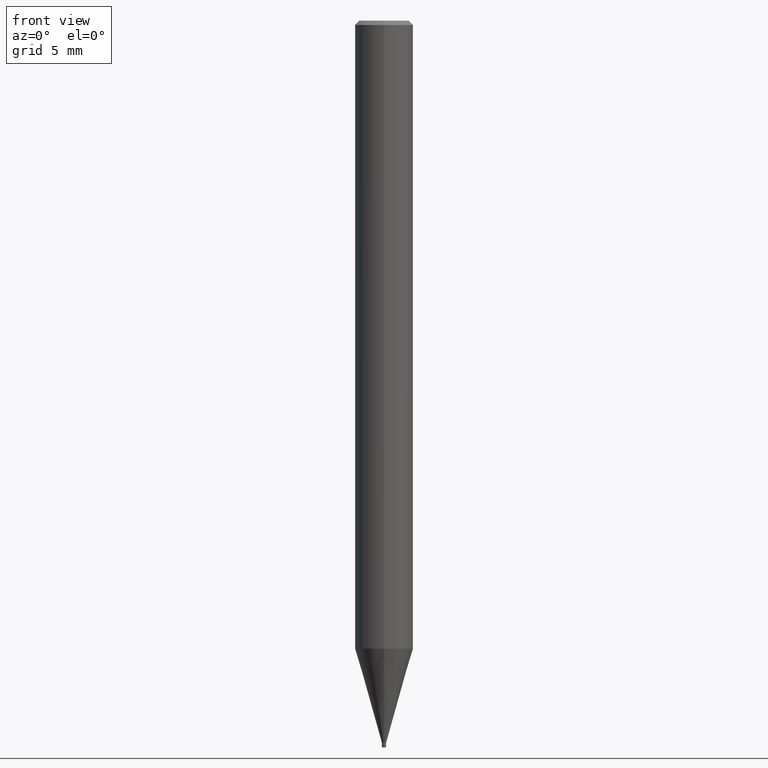
[diagram: clean part render]
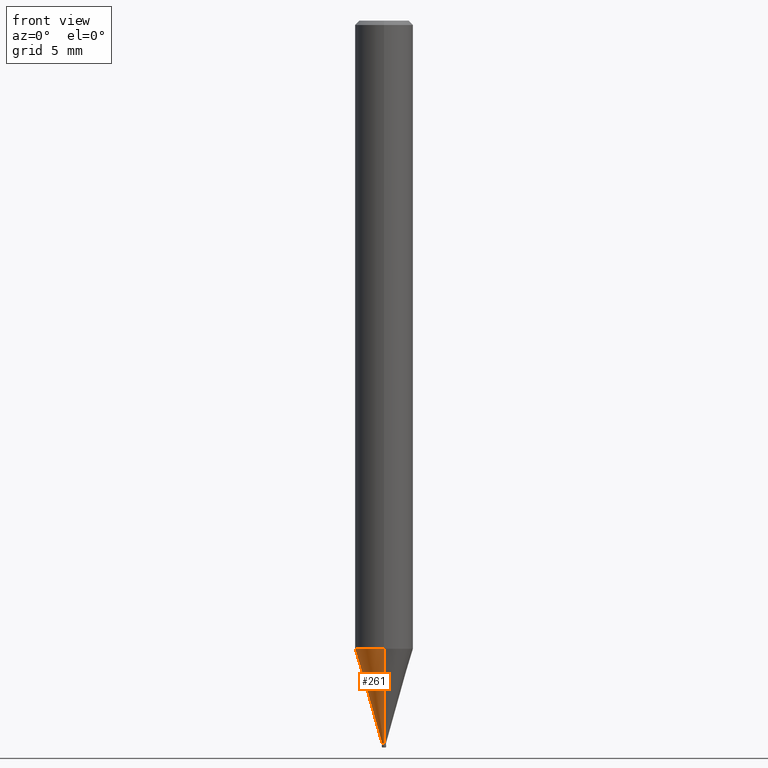
[diagram: same view with one face highlighted and labeled with its STEP entity id]
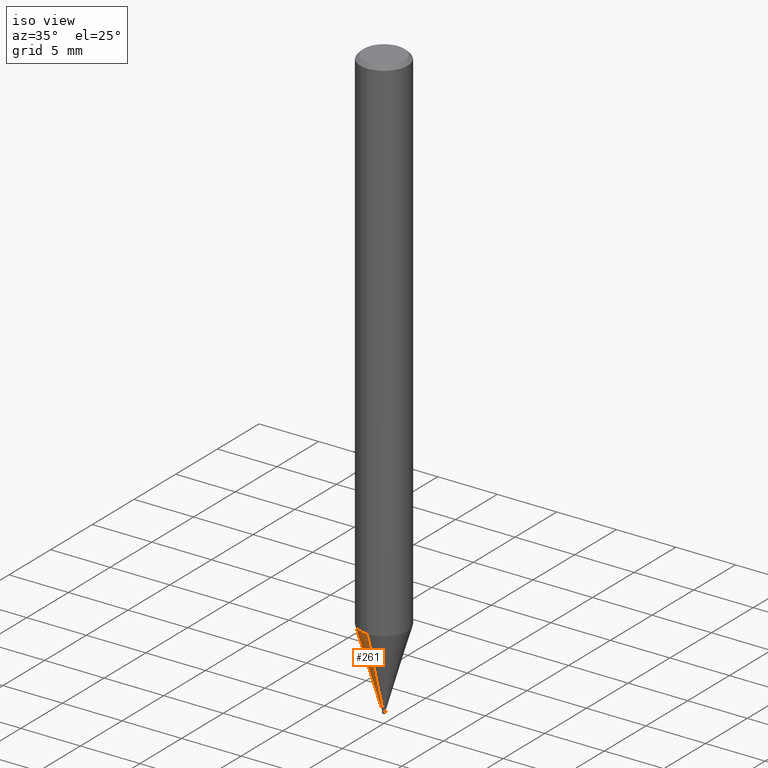
[diagram: same view with one face highlighted and labeled with its STEP entity id]
A machine part, front view. The second image highlights one B-rep face of the part: STEP entity #261.
A second angle (iso view) of the same face is appended — the face is thin or edge-on in the first view.
In plain terms, the highlighted conical surface has half-angle 15.999 deg.
Its self-contained STEP definition (entity closure, byte-faithful):
#153=VERTEX_POINT('',#391);
#221=VERTEX_POINT('',#466);
#239=EDGE_CURVE('',#153,#341,#487,.T.);
#245=VERTEX_POINT('',#493);
#247=EDGE_CURVE('',#245,#341,#495,.T.);
#261=ADVANCED_FACE('',(#511),#512,.T.);
#303=EDGE_CURVE('',#153,#221,#560,.T.);
#319=EDGE_CURVE('',#221,#245,#578,.T.);
#341=VERTEX_POINT('',#604);
#391=CARTESIAN_POINT('',(1.71383659217442E-017,-0.13995,-49.69));
#466=CARTESIAN_POINT('',(2.44915147732706E-016,-1.99995,-43.203));
#487=CIRCLE('',#770,0.13995);
#493=CARTESIAN_POINT('',(0.0,1.99995,-43.203));
#495=LINE('',#781,#782);
#511=FACE_OUTER_BOUND('',#801,.T.);
#512=CONICAL_SURFACE('',#802,1.06995,0.27923596926092);
#560=LINE('',#871,#872);
#578=CIRCLE('',#896,1.99995);
#604=CARTESIAN_POINT('',(0.0,0.13995,-49.69));
#770=AXIS2_PLACEMENT_3D('',#1083,#1084,#1085);
#781=CARTESIAN_POINT('',(-1.31026756827225E-016,1.06995,-46.4465));
#782=VECTOR('',#1092,1.0);
#801=EDGE_LOOP('',(#1114,#1115,#1116,#1117));
#802=AXIS2_PLACEMENT_3D('',#1118,#1119,#1120);
#871=CARTESIAN_POINT('',(1.31026756827225E-016,-1.06995,-46.4465));
#872=VECTOR('',#1186,1.0);
#896=AXIS2_PLACEMENT_3D('',#1216,#1217,#1218);
#1083=CARTESIAN_POINT('',(0.0,0.0,-49.69));
#1084=DIRECTION('',(0.0,0.0,-1.0));
#1085=DIRECTION('',(0.0,1.0,0.0));
#1092=DIRECTION('',(3.37527585527933E-017,-0.275621292078393,-0.961266301995986));
#1114=ORIENTED_EDGE('',*,*,#247,.T.);
#1115=ORIENTED_EDGE('',*,*,#239,.F.);
#1116=ORIENTED_EDGE('',*,*,#303,.T.);
#1117=ORIENTED_EDGE('',*,*,#319,.T.);
#1118=CARTESIAN_POINT('',(0.0,0.0,-46.4465));
#1119=DIRECTION('',(-0.0,-0.0,1.0));
#1120=DIRECTION('',(0.0,1.0,0.0));
#1186=DIRECTION('',(3.37527585527933E-017,-0.275621292078393,0.961266301995986));
#1216=CARTESIAN_POINT('',(0.0,0.0,-43.203));
#1217=DIRECTION('',(0.0,0.0,-1.0));
#1218=DIRECTION('',(0.0,1.0,0.0));